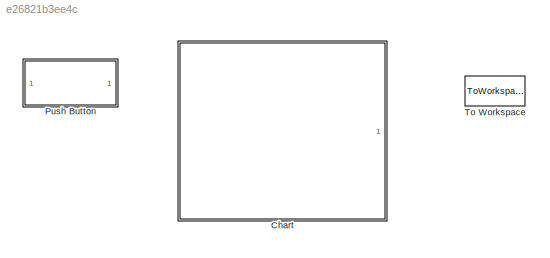
MODEL slx_e26821b3ee4c
KIND model
CONFIG AbsTol = auto
CONFIG EnableMultiTasking = on
CONFIG FixedStep = 0.1
CONFIG MaxStep = auto
CONFIG MinStep = auto
CONFIG RelTol = 1e-3
CONFIG SampleTimeConstraint = Unconstrained
CONFIG Solver = FixedStepDiscrete
CONFIG SolverName = FixedStepDiscrete
CONFIG StartTime = 0.0
CONFIG StopTime = 60
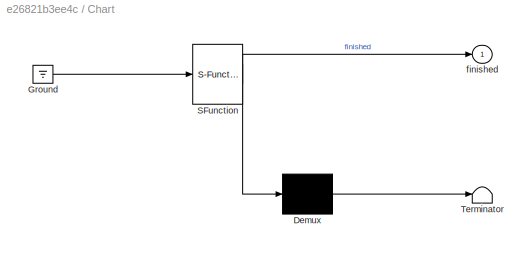
BLOCK [SubSystem] Chart
  Commented = on
  ErrorFcn = Stateflow.Translate.translate
  PermitHierarchicalResolution = ExplicitOnly
  Ports = [0, 1]
  RequestExecContextInheritance = off
  SFBlockType = Chart
  TreatAsAtomicUnit = on
BLOCK [Demux] Chart/ Demux 
  Outputs = 1
  Ports = [1, 1]
BLOCK [Ground] Chart/ Ground 
BLOCK [S-Function] Chart/ SFunction 
  EnableBusSupport = on
  FunctionName = sf_sfun
  PortCounts = [1 2]
  Ports = [1, 2]
  SFcnIsStateOwnerBlock = off
  SFunctionDeploymentMode = off
  Tag = Stateflow S-Function astrobotics_flowchart 3
BLOCK [Terminator] Chart/ Terminator 
BLOCK [Outport] Chart/finished
  IconDisplay = Port number
BLOCK [SubSystem] Push Button
  DialogController = hmiCreateDDGDialog
  IsWebBlock = on
  Ports = []
  RequestExecContextInheritance = off
BLOCK [ToWorkspace] To Workspace
  FixptAsFi = on
  MaxDataPoints = inf
  Ports = [1]
  SampleTime = -1
  Save2DSignal = 3-D array (concatenate along third dimension)
  SaveFormat = Timeseries
  VariableName = simout
CHART Chart states=6 transitions=7
  STATE_LABEL 'start\nentry: state_select = 0;\n state_select = state_select + 1;\n cycles = 0;\n finished = false;\n'
  STATE_LABEL 'deposit_material \nentry: state_select = 4;\n cycles = cycles + 1;\n state_select = 1;\n if cycles == 5\n     state_select = 5;\n end\n'
  STATE_LABEL 'drive_out %State Name\nentry: state_select = 1; % entry action\n state_select = state_select + 1;\n % during:'
  STATE_LABEL 'excavate\nentry: state_select = 2;\n state_select = state_select + 1;\n'
  STATE_LABEL 'drive_in\nentry: state_select = 3;\n state_select = state_select + 1;\n'
  STATE_LABEL 'stop \nentry: state_select = 5;\n finished = true;\n'
